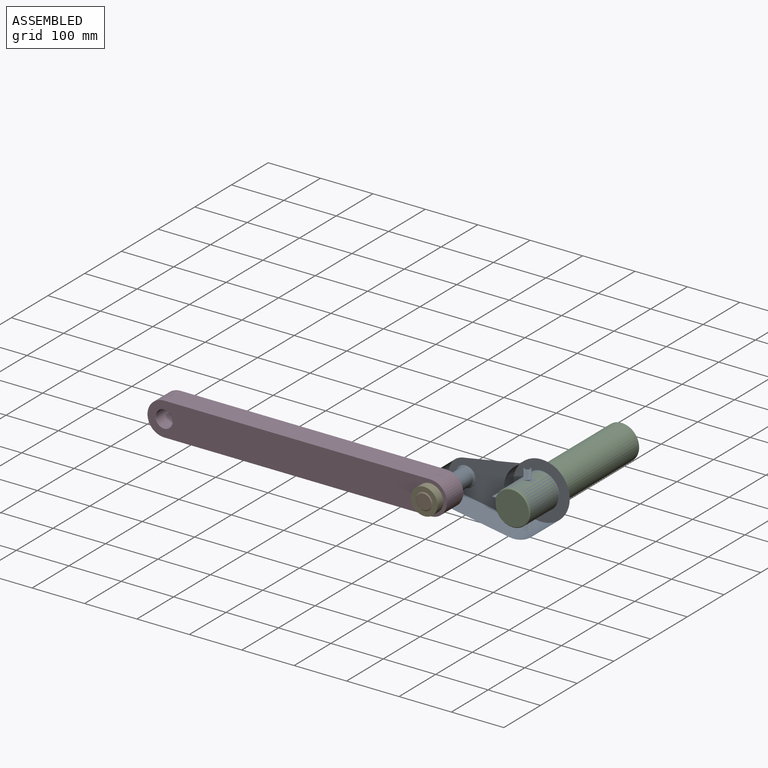
[diagram: assembled view]
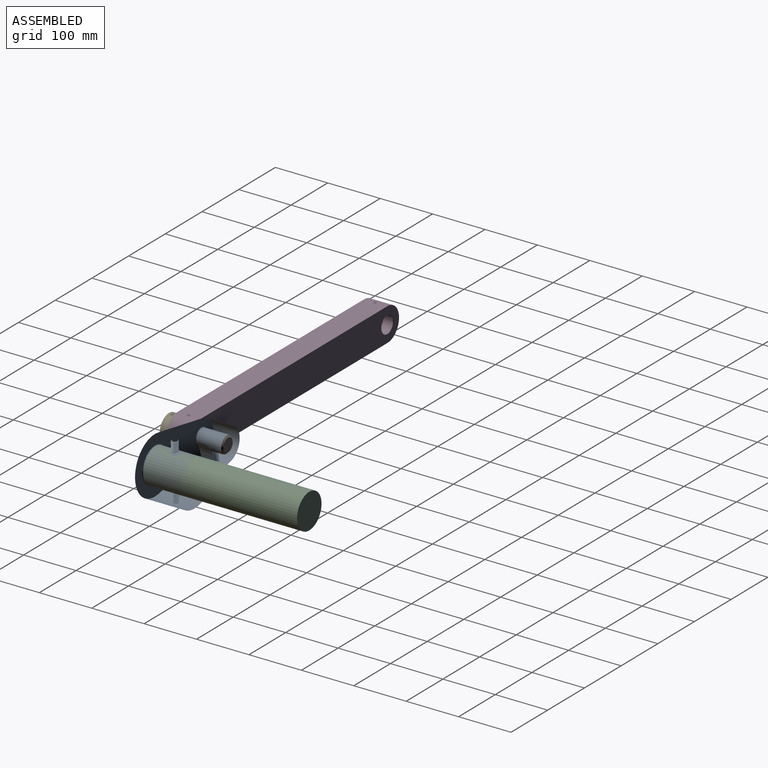
[diagram: assembled view, second angle]
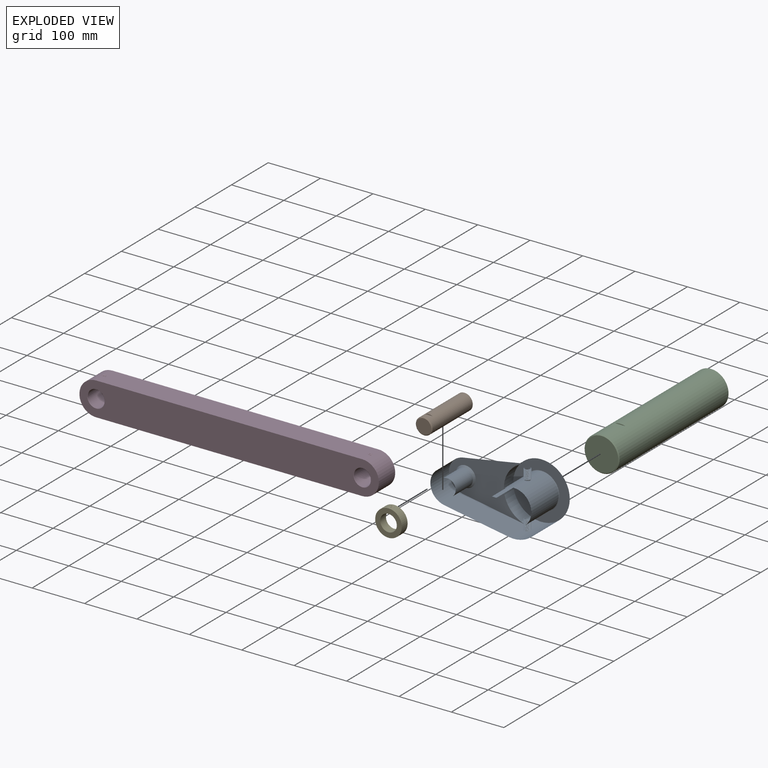
[diagram: exploded view]
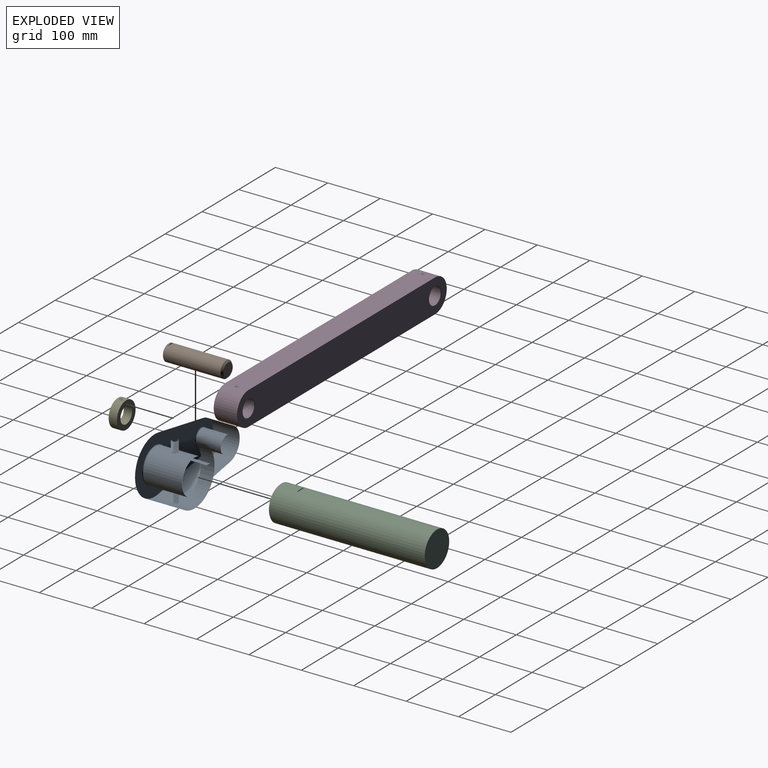
[diagram: exploded view, second angle]
ASSEMBLY  parts=5 mates=4
PART A: 27 faces, bbox 212.7x76.2x109.9 mm
  f0: cylinder r=33.38mm len=9.53mm, axis (0,1,0), area 71.4mm2, adj f1
  f1: cylinder r=4.76mm len=20.26mm, axis (0,0,1), area 38.1mm2, adj f0,f2,f3,f4,f5
  f2: plane 1.79x1.55mm, normal (0,-1,0), area 1.4mm2, adj f1,f3,f5
  f3: bspline ~21.02x14.58mm, area 651.3mm2, adj f1,f2,f4,f5,f6
  f4: bspline ~9.44x8.22mm, area 5.3mm2, adj f1,f3,f5,f6
  f5: bspline ~21.33x14.58mm, area 680.9mm2, adj f1,f2,f3,f4,f6
  f6: cylinder r=53.98mm len=107.95mm, axis (0,1,0), area 17999.1mm2, adj f3,f4,f5,f7,f8,f9,f10,f11
  f7: plane 123.11x50.8mm, normal (0.18,0,0.98), area 6352mm2, adj f6,f8,f11,f15
  f8: plane 149.3x106.28mm, normal (0,-1,0), area 6890.8mm2, adj f6,f7,f10,f15,f16
  f9: plane 107.95x107.95mm, normal (0,-1,0), area 5362.9mm2, adj f6,f17,f18,f19,f20
  f10: plane 123.11x50.8mm, normal (0.18,0,-0.98), area 6352mm2, adj f6,f8,f11,f15
  f11: plane 212.73x107.95mm, normal (0,1,0), area 12522.7mm2, adj f6,f7,f10,f15,f17,f19,f20,f21
  f12: bspline ~21.34x14.62mm, area 689.9mm2, adj f6,f13,f14,f23,f24
  f13: bspline ~21.03x14.62mm, area 659.8mm2, adj f6,f12,f14,f23,f24
  f14: bspline ~9.31x8.22mm, area 5.7mm2, adj f6,f12,f13,f23
  f15: cylinder r=31.75mm len=62.52mm, axis (0,1,0), area 4499.6mm2, adj f7,f8,f10,f11
  f16: cone r=19.3mm half-angle=45deg, axis (0,1,0), area 499.8mm2, adj f8,f25
  f17: plane 76.2x8.86mm, normal (0,0,-1), area 674.2mm2, adj f9,f11,f18,f20,f22,f26
  f18: cone r=34.19mm half-angle=45deg, axis (0,1,0), area 225.6mm2, adj f9,f17,f19,f26
  f19: plane 76.2x8.86mm, normal (0,0,1), area 674.2mm2, adj f9,f11,f18,f20,f22,f26
  f20: plane 76.2x15.88mm, normal (-1,0,0), area 1209.7mm2, adj f9,f11,f17,f19
  f21: cone r=16.13mm half-angle=45deg, axis (0,-1,0), area 119.4mm2, adj f11,f25
  f22: cone r=33.38mm half-angle=45deg, axis (0,-1,0), area 225.6mm2, adj f11,f17,f19,f26
  f23: cylinder r=4.76mm len=20.26mm, axis (0,0,1), area 50mm2, adj f12,f13,f14,f24,f26
  f24: plane 1.81x1.57mm, normal (0,1,0), area 1.4mm2, adj f12,f13,f23
  f25: cylinder r=16.13mm len=46.81mm, axis (0,1,0), area 4744mm2, adj f16,f21
  f26: cylinder r=33.38mm len=74.57mm, axis (0,1,0), area 14371.8mm2, adj f17,f18,f19,f22,f23
PART B: 8 faces, bbox 31.8x114.3x31.8 mm
  f0: cylinder r=15.88mm len=109.54mm, axis (0,1,0), area 10790.6mm2, adj f3,f4,f5,f6,f7
  f1: plane 28.58x28.58mm, normal (0,-1,0), area 641.3mm2, adj f3
  f2: plane 25.4x25.4mm, normal (0,1,0), area 506.7mm2, adj f4
  f3: cone r=14.29mm half-angle=45deg, axis (0,1,0), area 212.7mm2, adj f0,f1
  f4: cone r=15.88mm half-angle=45deg, axis (0,-1,0), area 403.1mm2, adj f0,f2
  f5: plane 13.84x9.45mm, normal (0,0,1), area 130.8mm2, adj f0,f6,f7
  f6: plane 13.84x1.59mm, normal (0,-1,0), area 14.8mm2, adj f0,f5
  f7: plane 13.84x1.59mm, normal (0,1,0), area 14.8mm2, adj f0,f5
PART C: 15 faces, bbox 66.8x298.5x66.8 mm
  f0: cylinder r=33.38mm len=296.86mm, axis (0,1,0), area 60704.4mm2, adj f2,f3,f5,f6,f7,f8,f9,f10
  f1: plane 63.58x63.58mm, normal (0,-1,0), area 3174.5mm2, adj f14
  f2: plane 66.75x66.75mm, normal (0,1,0), area 3499.5mm2, adj f0
  f3: plane 63.5x9.53mm, normal (0,0,1), area 604.8mm2, adj f0,f4,f6,f7
  f4: plane 63.5x15.88mm, normal (-1,0,0), area 1008.1mm2, adj f3,f5,f6,f7
  f5: plane 63.5x9.53mm, normal (0,0,-1), area 604.8mm2, adj f0,f4,f6,f7
  f6: plane 15.88x10.48mm, normal (0,-1,0), area 161.4mm2, adj f0,f3,f4,f5
  f7: plane 15.88x10.48mm, normal (0,1,0), area 161.4mm2, adj f0,f3,f4,f5
  f8: plane 20.58x12.7mm, normal (0,0,-1), area 261.3mm2, adj f0,f9,f10
  f9: plane 20.58x1.63mm, normal (0,-1,0), area 22.4mm2, adj f0,f8
  f10: plane 20.58x1.63mm, normal (0,1,0), area 22.4mm2, adj f0,f8
  f11: plane 20.58x12.7mm, normal (0,0,1), area 261.3mm2, adj f0,f12,f13
  f12: plane 20.58x1.63mm, normal (0,-1,0), area 22.4mm2, adj f0,f11
  f13: plane 20.58x1.63mm, normal (0,1,0), area 22.4mm2, adj f0,f11
  f14: cone r=31.79mm half-angle=45deg, axis (0,1,0), area 459.6mm2, adj f0,f1
PART D: 27 faces, bbox 571.6x44.6x64.5 mm
  f0: plane 508.11x44.56mm, normal (0,0,1), area 22534.9mm2, adj f1,f17,f18,f19,f20,f21,f23,f24
  f1: plane 571.5x63.5mm, normal (0,1,0), area 33685.8mm2, adj f0,f2,f3,f11,f19,f21
  f2: plane 508x44.45mm, normal (0,0,-1), area 22580.6mm2, adj f1,f19,f20,f21
  f3: cone r=16.64mm half-angle=45deg, axis (0,1,0), area 74mm2, adj f1,f4
  f4: cylinder r=16.13mm len=43.43mm, axis (0,1,0), area 4370.7mm2, adj f3,f5,f8,f9,f10
  f5: bspline ~16.1x10.02mm, area 345.5mm2, adj f4,f6,f7,f8,f9,f18,f19
  f6: plane 1.34x1.16mm, normal (0,1,0), area 0.8mm2, adj f5,f8,f18
  f7: bspline ~6.99x3.77mm, area 4.1mm2, adj f5,f8,f17,f18,f19
  f8: cylinder r=3.17mm len=15.29mm, axis (0,0,-1), area 17.2mm2, adj f4,f5,f6,f7,f18
  f9: cylinder r=3.17mm len=2.63mm, axis (0,0,-1), area 0mm2, adj f4,f5
  f10: cone r=16.13mm half-angle=45deg, axis (0,-1,0), area 74mm2, adj f4,f20
  f11: cone r=16.64mm half-angle=45deg, axis (0,1,0), area 74mm2, adj f1,f12
  f12: cylinder r=16.13mm len=43.43mm, axis (0,1,0), area 4369.8mm2, adj f11,f13,f14,f15,f16,f24
  f13: plane 1.35x1.19mm, normal (0,1,0), area 0.8mm2, adj f12,f15,f23,f24
  f14: cylinder r=3.17mm len=1.6mm, axis (0,0,-1), area 0mm2, adj f12,f24
  f15: cylinder r=3.17mm len=15.42mm, axis (0,0,-1), area 8mm2, adj f12,f13,f23,f24,f26
  f16: cone r=16.13mm half-angle=45deg, axis (0,-1,0), area 74mm2, adj f12,f20
  f17: cone r=3.17mm half-angle=45deg, axis (0,0,1), area 1.9mm2, adj f0,f7,f18
  f18: bspline ~15.87x10.02mm, area 335.2mm2, adj f0,f5,f6,f7,f8,f17,f19
  f19: cylinder r=31.75mm len=63.5mm, axis (0,1,0), area 4410.9mm2, adj f0,f1,f2,f5,f7,f18,f20
  f20: plane 571.5x63.5mm, normal (0,-1,0), area 33685.8mm2, adj f0,f2,f10,f16,f19,f21
  f21: cylinder r=31.75mm len=63.5mm, axis (0,1,0), area 4412.4mm2, adj f0,f1,f2,f20,f22,f23
  f22: bspline ~4.68x3.81mm, area 1.1mm2, adj f21,f23,f26
  f23: bspline ~16.13x10.07mm, area 341.5mm2, adj f0,f13,f15,f21,f22,f24,f26
  f24: bspline ~16.13x8.72mm, area 355.5mm2, adj f0,f12,f13,f14,f15,f23,f25
  f25: plane 0.88x0.51mm, normal (0,-1,0), area 0.1mm2, adj f0,f24,f26
  f26: cone r=3.17mm half-angle=45deg, axis (0,0,1), area 3.2mm2, adj f0,f15,f22,f23,f25
PART E: 11 faces, bbox 50.8x15.9x51.3 mm
  f0: cylinder r=4.76mm len=7.75mm, axis (0,0,-1), area 0mm2, adj f1,f10
  f1: bspline ~11.12x11.12mm, area 306.8mm2, adj f0,f2,f5,f6,f9,f10
  f2: bspline ~11.12x11.1mm, area 297.3mm2, adj f1,f3,f4,f6,f9,f10
  f3: bspline ~8.34x6.42mm, area 3.6mm2, adj f2,f4,f10
  f4: plane 0.92x0.8mm, normal (0,1,0), area 0.4mm2, adj f2,f3,f9
  f5: bspline ~11.12x6.42mm, area 0mm2, adj f1,f6
  f6: cylinder r=25.4mm len=50.8mm, axis (0,1,0), area 2449.5mm2, adj f1,f2,f5,f7,f8,f9
  f7: plane 50.8x50.8mm, normal (0,1,0), area 1235.1mm2, adj f6,f10
  f8: plane 50.8x50.8mm, normal (0,-1,0), area 1235.1mm2, adj f6,f10
  f9: cylinder r=4.76mm len=10.11mm, axis (0,0,-1), area -0.1mm2, adj f1,f2,f4,f6,f10
  f10: cylinder r=15.88mm len=31.75mm, axis (0,1,0), area 1507.6mm2, adj f0,f1,f2,f3,f7,f8,f9
PLACE A t=(0,-2.68,0)mm
PLACE B t=(0,-2.68,0)mm
PLACE C at identity fixed
PLACE D t=(-254,-63.81,0)mm
PLACE E t=(0,-94.75,0)mm
MATE fastened B.f0 <-> A.f15  axis (0,-1,0) through (0,6.85,0)mm
MATE slider A.f0 <-> C.f0  axis (0,1,0) through (127,35.42,0)mm
MATE fastened E.f6 <-> B.f0  axis (0,-1,0) through (0,-102.69,0)mm
MATE slider D.f3 <-> B.f0  axis (0,1,0) through (0,-41.58,0)mm
